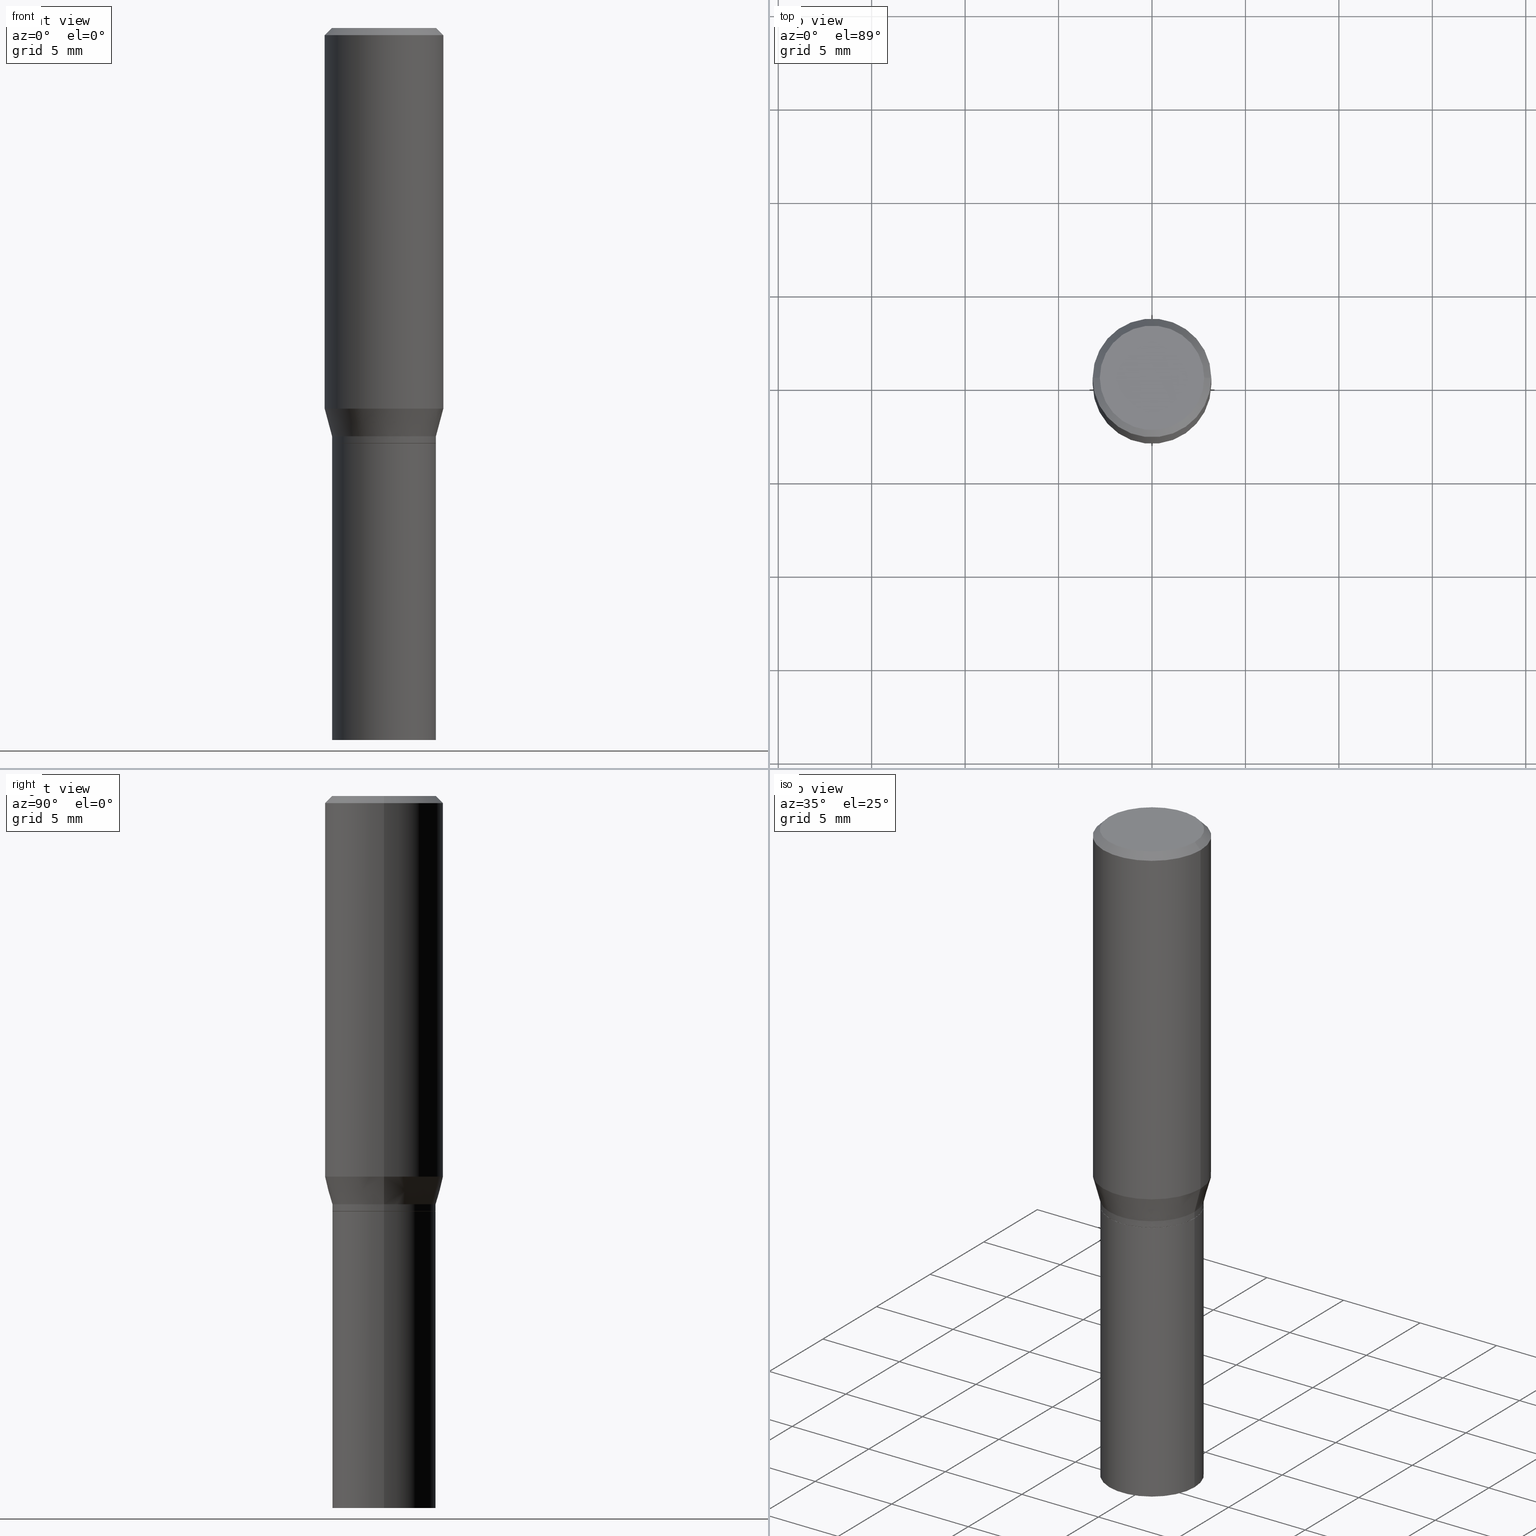
[diagram: canonical four-view strip — front | top / right | iso, engineering-drawing reading convention]
A machine part, canonical four-view strip (front | top / right | iso — engineering-drawing reading convention). The complete STEP part file that produces these views, byte-faithful:
ISO-10303-21;
HEADER;
FILE_DESCRIPTION (( 'STEP AP203' ),
    '1' );
FILE_NAME ('35480.STEP',
    '2024-03-13T16:42:05',
    ( '' ),
    ( '' ),
    'SwSTEP 2.0',
    'SolidWorks 2023',
    '' );
FILE_SCHEMA (( 'CONFIG_CONTROL_DESIGN' ));
ENDSEC;

DATA;
#1 = DIRECTION ( 'NONE',  ( 2.445468806185136597E-29, -3.491481338843145583E-15, -1.000000000000000000 ) ) ;
#2 =( NAMED_UNIT ( * ) PLANE_ANGLE_UNIT ( ) SI_UNIT ( $, .RADIAN. ) );
#3 = CC_DESIGN_DATE_AND_TIME_ASSIGNMENT ( #321, #139, ( #93 ) ) ;
#4 = CONICAL_SURFACE ( 'NONE', #52, 0.1250000000000000000, 0.7853981633974483900 ) ;
#5 = DIRECTION ( 'NONE',  ( 1.000000000000000000, -6.982962677686269866E-15, 0.000000000000000000 ) ) ;
#6 = LOCAL_TIME ( 12, 42, 5.000000000000000000, #286 ) ;
#7 = VERTEX_POINT ( 'NONE', #215 ) ;
#8 = ORIENTED_EDGE ( 'NONE', *, *, #59, .F. ) ;
#9 = DIRECTION ( 'NONE',  ( -2.445468806185136597E-29, 3.491481338843145583E-15, 1.000000000000000000 ) ) ;
#10 = CARTESIAN_POINT ( 'NONE',  ( 0.1094000000000000389, -7.639361169388778676E-16, 5.334537392720755310E-30 ) ) ;
#11 = EDGE_CURVE ( 'NONE', #159, #70, #339, .T. ) ;
#12 = AXIS2_PLACEMENT_3D ( 'NONE', #349, #464, #449 ) ;
#13 = PERSON ( 'UNSPECIFIED', 'UNSPECIFIED', 'UNSPECIFIED', ('UNSPECIFIED'), ('UNSPECIFIED'), ('UNSPECIFIED') ) ;
#14 = CIRCLE ( 'NONE', #89, 0.1093999999999999972 ) ;
#15 = EDGE_CURVE ( 'NONE', #123, #412, #312, .T. ) ;
#16 = EDGE_CURVE ( 'NONE', #287, #412, #378, .T. ) ;
#17 = CC_DESIGN_PERSON_AND_ORGANIZATION_ASSIGNMENT ( #207, #167, ( #295 ) ) ;
#18 = ORIENTED_EDGE ( 'NONE', *, *, #436, .F. ) ;
#19 = VECTOR ( 'NONE', #374, 39.37007874015748143 ) ;
#20 = FACE_OUTER_BOUND ( 'NONE', #367, .T. ) ;
#21 = MANIFOLD_SOLID_BREP ( 'Body-Move/Copy2[1]', #235 ) ;
#22 = APPROVAL_PERSON_ORGANIZATION ( #462, #351, #36 ) ;
#23 = EDGE_CURVE ( 'NONE', #175, #261, #28, .T. ) ;
#24 = DIRECTION ( 'NONE',  ( -2.445468806185136597E-29, 3.491481338843145583E-15, 1.000000000000000000 ) ) ;
#25 = EDGE_LOOP ( 'NONE', ( #204, #160, #343, #280 ) ) ;
#26 = CARTESIAN_POINT ( 'NONE',  ( 1.960727997524297343E-29, -2.799399933701342964E-15, -0.8017800074019257872 ) ) ;
#27 = SHAPE_DEFINITION_REPRESENTATION ( #370, #397 ) ;
#28 = CIRCLE ( 'NONE', #12, 0.1088999999999999968 ) ;
#29 = CARTESIAN_POINT ( 'NONE',  ( 2.138562471008902281E-29, -3.053300430818330832E-15, -0.8745000000000000551 ) ) ;
#30 = CIRCLE ( 'NONE', #451, 0.1094000000000000389 ) ;
#31 = DIRECTION ( 'NONE',  ( 1.000000000000000000, -6.982962677686266711E-15, 4.876001053725558154E-29 ) ) ;
#32 = SECURITY_CLASSIFICATION_LEVEL ( 'unclassified' ) ;
#33 = EDGE_CURVE ( 'NONE', #445, #287, #37, .T. ) ;
#34 = VERTEX_POINT ( 'NONE', #192 ) ;
#35 = DIRECTION ( 'NONE',  ( 1.000000000000000000, -6.982962677686266711E-15, 0.000000000000000000 ) ) ;
#36 = APPROVAL_ROLE ( '' ) ;
#37 = LINE ( 'NONE', #419, #193 ) ;
#38 = CALENDAR_DATE ( 2024, 13, 3 ) ;
#39 = LINE ( 'NONE', #426, #116 ) ;
#40 = DIRECTION ( 'NONE',  ( 1.000000000000000000, -6.982962677686266711E-15, 0.000000000000000000 ) ) ;
#41 = LINE ( 'NONE', #177, #425 ) ;
#42 = AXIS2_PLACEMENT_3D ( 'NONE', #328, #120, #5 ) ;
#43 = CC_DESIGN_APPROVAL ( #173, ( #310 ) ) ;
#44 = ORIENTED_EDGE ( 'NONE', *, *, #46, .T. ) ;
#45 = DIRECTION ( 'NONE',  ( -1.000000000000000000, 6.982962677686265922E-15, -4.876176775795935793E-29 ) ) ;
#46 = EDGE_CURVE ( 'NONE', #34, #198, #225, .T. ) ;
#47 = EDGE_LOOP ( 'NONE', ( #44, #256, #381, #331 ) ) ;
#48 = CARTESIAN_POINT ( 'NONE',  ( 2.138562471008902281E-29, -3.053300430818330832E-15, -0.8745000000000000551 ) ) ;
#49 = VERTEX_POINT ( 'NONE', #179 ) ;
#50 = FACE_OUTER_BOUND ( 'NONE', #273, .T. ) ;
#51 = ADVANCED_FACE ( 'NONE', ( #323 ), #466, .F. ) ;
#52 = AXIS2_PLACEMENT_3D ( 'NONE', #140, #245, #213 ) ;
#53 = CC_DESIGN_APPROVAL ( #351, ( #295 ) ) ;
#54 = CARTESIAN_POINT ( 'NONE',  ( -0.1094000000000000389, -2.068280856242386505E-15, -0.8600000000000000977 ) ) ;
#55 = EDGE_CURVE ( 'NONE', #261, #175, #461, .T. ) ;
#56 = LINE ( 'NONE', #335, #433 ) ;
#57 = LINE ( 'NONE', #448, #81 ) ;
#58 = ORIENTED_EDGE ( 'NONE', *, *, #15, .T. ) ;
#59 = EDGE_CURVE ( 'NONE', #412, #287, #60, .T. ) ;
#60 = CIRCLE ( 'NONE', #275, 0.1250000000000000000 ) ;
#61 = AXIS2_PLACEMENT_3D ( 'NONE', #313, #392, #31 ) ;
#62 = CARTESIAN_POINT ( 'NONE',  ( 0.1088999999999999968, -3.815490807087786506E-15, -0.8750000000000001110 ) ) ;
#63 = EDGE_CURVE ( 'NONE', #70, #159, #88, .T. ) ;
#64 = CARTESIAN_POINT ( 'NONE',  ( 0.1093999999999999972, -3.818982288426630302E-15, -0.8750000000000001110 ) ) ;
#65 = COORDINATED_UNIVERSAL_TIME_OFFSET ( 5, 0, .BEHIND. ) ;
#66 = ORIENTED_EDGE ( 'NONE', *, *, #85, .F. ) ;
#67 = AXIS2_PLACEMENT_3D ( 'NONE', #184, #111, #35 ) ;
#68 = DIRECTION ( 'NONE',  ( -2.445468806185136597E-29, 3.491481338843145583E-15, 1.000000000000000000 ) ) ;
#69 = CALENDAR_DATE ( 2024, 13, 3 ) ;
#70 = VERTEX_POINT ( 'NONE', #296 ) ;
#71 = CC_DESIGN_PERSON_AND_ORGANIZATION_ASSIGNMENT ( #279, #291, ( #310 ) ) ;
#72 = MECHANICAL_CONTEXT ( 'NONE', #264, 'mechanical' ) ;
#73 = EDGE_LOOP ( 'NONE', ( #442, #260 ) ) ;
#74 = AXIS2_PLACEMENT_3D ( 'NONE', #369, #441, #298 ) ;
#75 = CARTESIAN_POINT ( 'NONE',  ( 0.000000000000000000, 0.000000000000000000, 0.000000000000000000 ) ) ;
#76 =( LENGTH_UNIT ( ) NAMED_UNIT ( * ) SI_UNIT ( $, .METRE. ) );
#77 = CARTESIAN_POINT ( 'NONE',  ( 7.681258945454893776E-16, 0.1100000000000000006, -3.879001556016067477E-16 ) ) ;
#78 = DIRECTION ( 'NONE',  ( -2.445468806185136597E-29, 3.491481338843145583E-15, 1.000000000000000000 ) ) ;
#79 = ORIENTED_EDGE ( 'NONE', *, *, #126, .F. ) ;
#80 = AXIS2_PLACEMENT_3D ( 'NONE', #429, #113, #45 ) ;
#81 = VECTOR ( 'NONE', #278, 39.37007874015748143 ) ;
#82 = DIRECTION ( 'NONE',  ( -2.445468806185136597E-29, 3.491481338843145583E-15, 1.000000000000000000 ) ) ;
#83 = ORIENTED_EDGE ( 'NONE', *, *, #422, .T. ) ;
#84 = DIRECTION ( 'NONE',  ( -2.445468806185136597E-29, 3.491481338843145583E-15, 1.000000000000000000 ) ) ;
#85 = EDGE_CURVE ( 'NONE', #49, #122, #268, .T. ) ;
#86 = DIRECTION ( 'NONE',  ( 1.000000000000000000, -6.982962677686269866E-15, 0.000000000000000000 ) ) ;
#87 = EDGE_LOOP ( 'NONE', ( #408, #106, #119, #398 ) ) ;
#88 = CIRCLE ( 'NONE', #400, 0.1094000000000000528 ) ;
#89 = AXIS2_PLACEMENT_3D ( 'NONE', #405, #191, #86 ) ;
#90 = FACE_OUTER_BOUND ( 'NONE', #47, .T. ) ;
#91 = ORIENTED_EDGE ( 'NONE', *, *, #320, .T. ) ;
#92 = DIRECTION ( 'NONE',  ( -2.445468806185136597E-29, 3.491481338843145583E-15, 1.000000000000000000 ) ) ;
#93 = PRODUCT_DEFINITION ( 'UNKNOWN', '', #295, #376 ) ;
#94 = VECTOR ( 'NONE', #342, 39.37007874015748143 ) ;
#95 = DIRECTION ( 'NONE',  ( 1.000000000000000000, -6.982962677686266711E-15, 0.000000000000000000 ) ) ;
#96 = ORIENTED_EDGE ( 'NONE', *, *, #33, .F. ) ;
#97 = ORIENTED_EDGE ( 'NONE', *, *, #185, .F. ) ;
#98 = ADVANCED_FACE ( 'NONE', ( #186 ), #236, .T. ) ;
#99 = CARTESIAN_POINT ( 'NONE',  ( -0.1088999999999999968, -2.278615905070892449E-15, -0.8750000000000001110 ) ) ;
#100 = ADVANCED_FACE ( 'NONE', ( #368 ), #450, .T. ) ;
#101 = DIRECTION ( 'NONE',  ( -0.7071067811865475727, 2.468850131082257455E-15, -0.7071067811865474617 ) ) ;
#102 = PERSON_AND_ORGANIZATION ( #13, #262 ) ;
#103 = EDGE_LOOP ( 'NONE', ( #337, #267 ) ) ;
#104 = COORDINATED_UNIVERSAL_TIME_OFFSET ( 5, 0, .BEHIND. ) ;
#105 = CC_DESIGN_PERSON_AND_ORGANIZATION_ASSIGNMENT ( #170, #151, ( #93 ) ) ;
#106 = ORIENTED_EDGE ( 'NONE', *, *, #383, .T. ) ;
#107 = CIRCLE ( 'NONE', #409, 0.1093999999999999972 ) ;
#108 = FACE_OUTER_BOUND ( 'NONE', #25, .T. ) ;
#109 = ORIENTED_EDGE ( 'NONE', *, *, #422, .F. ) ;
#110 = ORIENTED_EDGE ( 'NONE', *, *, #16, .F. ) ;
#111 = DIRECTION ( 'NONE',  ( -2.445468806185136597E-29, 3.491481338843145583E-15, 1.000000000000000000 ) ) ;
#112 = PERSON_AND_ORGANIZATION ( #13, #262 ) ;
#113 = DIRECTION ( 'NONE',  ( 2.438088387897960049E-29, -3.491481338843145188E-15, -1.000000000000000000 ) ) ;
#114 = PERSON_AND_ORGANIZATION_ROLE ( 'design_owner' ) ;
#115 = DIRECTION ( 'NONE',  ( -2.445468806185136597E-29, 3.491481338843145583E-15, 1.000000000000000000 ) ) ;
#116 = VECTOR ( 'NONE', #455, 39.37007874015748143 ) ;
#117 = PLANE ( 'NONE',  #390 ) ;
#118 = ORIENTED_EDGE ( 'NONE', *, *, #324, .F. ) ;
#119 = ORIENTED_EDGE ( 'NONE', *, *, #46, .F. ) ;
#120 = DIRECTION ( 'NONE',  ( -2.445468806185136597E-29, 3.491481338843145583E-15, 1.000000000000000000 ) ) ;
#121 = DIRECTION ( 'NONE',  ( -2.445468806185136877E-29, 3.491481338843145188E-15, 1.000000000000000000 ) ) ;
#122 = VERTEX_POINT ( 'NONE', #271 ) ;
#123 = VERTEX_POINT ( 'NONE', #382 ) ;
#124 = LOCAL_TIME ( 12, 42, 5.000000000000000000, #384 ) ;
#125 = ADVANCED_FACE ( 'NONE', ( #206 ), #341, .T. ) ;
#126 = EDGE_CURVE ( 'NONE', #198, #34, #30, .T. ) ;
#127 = CARTESIAN_POINT ( 'NONE',  ( 0.000000000000000000, 0.000000000000000000, 0.000000000000000000 ) ) ;
#128 = LINE ( 'NONE', #266, #19 ) ;
#129 = DIRECTION ( 'NONE',  ( -2.445468806185136597E-29, 3.491481338843145583E-15, 1.000000000000000000 ) ) ;
#130 = EDGE_LOOP ( 'NONE', ( #292, #66 ) ) ;
#131 = AXIS2_PLACEMENT_3D ( 'NONE', #307, #132, #377 ) ;
#132 = DIRECTION ( 'NONE',  ( -2.445468806185136597E-29, 3.491481338843145583E-15, 1.000000000000000000 ) ) ;
#133 = CARTESIAN_POINT ( 'NONE',  ( 0.000000000000000000, 0.000000000000000000, 0.000000000000000000 ) ) ;
#134 = DIRECTION ( 'NONE',  ( 1.000000000000000000, -6.982962677686269866E-15, 0.000000000000000000 ) ) ;
#135 = VERTEX_POINT ( 'NONE', #444 ) ;
#136 = VECTOR ( 'NONE', #358, 39.37007874015748143 ) ;
#137 = LOCAL_TIME ( 12, 42, 5.000000000000000000, #244 ) ;
#138 = VERTEX_POINT ( 'NONE', #64 ) ;
#139 = DATE_TIME_ROLE ( 'creation_date' ) ;
#140 = CARTESIAN_POINT ( 'NONE',  ( 3.668203209277705088E-31, -5.237222008264718399E-17, -0.01499999999999999944 ) ) ;
#141 = CARTESIAN_POINT ( 'NONE',  ( 0.000000000000000000, 0.000000000000000000, 0.000000000000000000 ) ) ;
#142 = CARTESIAN_POINT ( 'NONE',  ( 0.000000000000000000, 0.000000000000000000, 0.000000000000000000 ) ) ;
#143 = ORIENTED_EDGE ( 'NONE', *, *, #126, .T. ) ;
#144 = DIRECTION ( 'NONE',  ( -2.445468806185136877E-29, 3.491481338843145188E-15, 1.000000000000000000 ) ) ;
#145 = CALENDAR_DATE ( 2024, 13, 3 ) ;
#146 = FACE_OUTER_BOUND ( 'NONE', #73, .T. ) ;
#147 = ORIENTED_EDGE ( 'NONE', *, *, #465, .T. ) ;
#148 = AXIS2_PLACEMENT_3D ( 'NONE', #26, #414, #389 ) ;
#149 = FACE_OUTER_BOUND ( 'NONE', #242, .T. ) ;
#150 = DATE_TIME_ROLE ( 'classification_date' ) ;
#151 = PERSON_AND_ORGANIZATION_ROLE ( 'creator' ) ;
#152 = EDGE_LOOP ( 'NONE', ( #336, #288, #156, #432 ) ) ;
#153 = VECTOR ( 'NONE', #233, 39.37007874015748143 ) ;
#154 = DIRECTION ( 'NONE',  ( 1.000000000000000000, -6.982962677686266711E-15, 0.000000000000000000 ) ) ;
#155 = DIRECTION ( 'NONE',  ( -2.445468806185136597E-29, 3.491481338843145583E-15, 1.000000000000000000 ) ) ;
#156 = ORIENTED_EDGE ( 'NONE', *, *, #16, .T. ) ;
#157 = CARTESIAN_POINT ( 'NONE',  ( 2.103103173319217765E-29, -3.002673951405105651E-15, -0.8600000000000000977 ) ) ;
#158 = EDGE_LOOP ( 'NONE', ( #302, #402, #147, #8 ) ) ;
#159 = VERTEX_POINT ( 'NONE', #202 ) ;
#160 = ORIENTED_EDGE ( 'NONE', *, *, #85, .T. ) ;
#161 = DIRECTION ( 'NONE',  ( -2.445468806185136597E-29, 3.491481338843145583E-15, 1.000000000000000000 ) ) ;
#162 = EDGE_CURVE ( 'NONE', #445, #7, #201, .T. ) ;
#163 = CIRCLE ( 'NONE', #360, 0.1093999999999999972 ) ;
#164 = APPROVAL ( #345, 'UNSPECIFIED' ) ;
#165 = LINE ( 'NONE', #380, #94 ) ;
#166 = FACE_OUTER_BOUND ( 'NONE', #224, .T. ) ;
#167 = PERSON_AND_ORGANIZATION_ROLE ( 'design_supplier' ) ;
#168 = ORIENTED_EDGE ( 'NONE', *, *, #59, .T. ) ;
#169 = LINE ( 'NONE', #353, #176 ) ;
#170 = PERSON_AND_ORGANIZATION ( #13, #262 ) ;
#171 = DIRECTION ( 'NONE',  ( -2.445468806185136597E-29, 3.491481338843145583E-15, 1.000000000000000000 ) ) ;
#172 = ADVANCED_FACE ( 'NONE', ( #20 ), #194, .T. ) ;
#173 = APPROVAL ( #428, 'UNSPECIFIED' ) ;
#174 = CALENDAR_DATE ( 2024, 13, 3 ) ;
#175 = VERTEX_POINT ( 'NONE', #62 ) ;
#176 = VECTOR ( 'NONE', #101, 39.37007874015748143 ) ;
#177 = CARTESIAN_POINT ( 'NONE',  ( -0.1088999999999999968, -2.281265132245003256E-15, -0.8750000000000001110 ) ) ;
#178 = MANIFOLD_SOLID_BREP ( 'Body-Move/Copy2[2]', #415 ) ;
#179 = CARTESIAN_POINT ( 'NONE',  ( -0.1093999999999999972, -3.368800336954685870E-15, -1.500000000000000222 ) ) ;
#180 = ADVANCED_FACE ( 'NONE', ( #446 ), #407, .T. ) ;
#181 = CARTESIAN_POINT ( 'NONE',  ( 2.139785205411994522E-29, -3.055046171487752730E-15, -0.8750000000000001110 ) ) ;
#182 = FACE_OUTER_BOUND ( 'NONE', #361, .T. ) ;
#183 = DIRECTION ( 'NONE',  ( -2.445468806185136877E-29, 3.491481338843145188E-15, 1.000000000000000000 ) ) ;
#184 = CARTESIAN_POINT ( 'NONE',  ( 1.960727997524297343E-29, -2.799399933701342964E-15, -0.8017800074019257872 ) ) ;
#185 = EDGE_CURVE ( 'NONE', #138, #135, #14, .T. ) ;
#186 = FACE_OUTER_BOUND ( 'NONE', #394, .T. ) ;
#187 = FACE_OUTER_BOUND ( 'NONE', #130, .T. ) ;
#188 = CARTESIAN_POINT ( 'NONE',  ( 3.668203209277705088E-31, -5.237222008264718399E-17, -0.01499999999999999944 ) ) ;
#189 = EDGE_LOOP ( 'NONE', ( #352, #253, #97, #410 ) ) ;
#190 = LINE ( 'NONE', #10, #153 ) ;
#191 = DIRECTION ( 'NONE',  ( -2.445468806185136597E-29, 3.491481338843145583E-15, 1.000000000000000000 ) ) ;
#192 = CARTESIAN_POINT ( 'NONE',  ( 0.1094000000000000389, -3.766610068343983617E-15, -0.8600000000000000977 ) ) ;
#193 = VECTOR ( 'NONE', #371, 39.37007874015748143 ) ;
#194 = CONICAL_SURFACE ( 'NONE', #131, 0.1088999999999999968, 0.7853981633974653764 ) ;
#195 = AXIS2_PLACEMENT_3D ( 'NONE', #257, #82, #229 ) ;
#196 = AXIS2_PLACEMENT_3D ( 'NONE', #142, #424, #356 ) ;
#197 = CARTESIAN_POINT ( 'NONE',  ( 2.139785205411994522E-29, -3.055046171487752730E-15, -0.8750000000000001110 ) ) ;
#198 = VERTEX_POINT ( 'NONE', #54 ) ;
#199 = ADVANCED_FACE ( 'NONE', ( #50 ), #306, .T. ) ;
#200 = ORIENTED_EDGE ( 'NONE', *, *, #55, .F. ) ;
#201 = CIRCLE ( 'NONE', #366, 0.1100000000000000006 ) ;
#202 = CARTESIAN_POINT ( 'NONE',  ( -0.1094000000000000528, -2.275966677896780854E-15, -0.8745000000000000551 ) ) ;
#203 = ADVANCED_FACE ( 'NONE', ( #90 ), #246, .T. ) ;
#204 = ORIENTED_EDGE ( 'NONE', *, *, #205, .F. ) ;
#205 = EDGE_CURVE ( 'NONE', #49, #135, #128, .T. ) ;
#206 = FACE_OUTER_BOUND ( 'NONE', #440, .T. ) ;
#207 = PERSON_AND_ORGANIZATION ( #13, #262 ) ;
#208 = EDGE_CURVE ( 'NONE', #122, #138, #56, .T. ) ;
#209 = DIRECTION ( 'NONE',  ( -2.445468806185136597E-29, 3.491481338843145583E-15, 1.000000000000000000 ) ) ;
#210 = CIRCLE ( 'NONE', #67, 0.1250000000000000000 ) ;
#211 = CARTESIAN_POINT ( 'NONE',  ( -0.1094000000000000389, 7.773337529215498796E-16, -5.381314988738868818E-30 ) ) ;
#212 = APPLICATION_PROTOCOL_DEFINITION ( 'international standard', 'config_control_design', 1994, #439 ) ;
#213 = DIRECTION ( 'NONE',  ( -1.000000000000000000, 6.982962677686266711E-15, 0.000000000000000000 ) ) ;
#214 = DATE_AND_TIME ( #69, #137 ) ;
#215 = CARTESIAN_POINT ( 'NONE',  ( -0.1100000000000000006, 7.943120045868128186E-16, -7.674416657726847932E-18 ) ) ;
#216 = DATE_AND_TIME ( #282, #452 ) ;
#217 = CYLINDRICAL_SURFACE ( 'NONE', #347, 0.1094000000000000389 ) ;
#218 = DIRECTION ( 'NONE',  ( 1.000000000000000000, -6.982962677686265922E-15, 0.000000000000000000 ) ) ;
#219 = DIRECTION ( 'NONE',  ( -2.445468806185136597E-29, 3.491481338843145583E-15, 1.000000000000000000 ) ) ;
#220 = AXIS2_PLACEMENT_3D ( 'NONE', #29, #388, #218 ) ;
#221 = LINE ( 'NONE', #364, #404 ) ;
#222 = LOCAL_TIME ( 12, 42, 5.000000000000000000, #65 ) ;
#223 = CARTESIAN_POINT ( 'NONE',  ( 2.139785205411994522E-29, -3.055046171487752730E-15, -0.8750000000000001110 ) ) ;
#224 = EDGE_LOOP ( 'NONE', ( #91, #58, #110, #255 ) ) ;
#225 = CIRCLE ( 'NONE', #305, 0.1094000000000000389 ) ;
#226 = AXIS2_PLACEMENT_3D ( 'NONE', #141, #254, #284 ) ;
#227 = ORIENTED_EDGE ( 'NONE', *, *, #11, .T. ) ;
#228 =( GEOMETRIC_REPRESENTATION_CONTEXT ( 3 ) GLOBAL_UNCERTAINTY_ASSIGNED_CONTEXT ( ( #265 ) ) GLOBAL_UNIT_ASSIGNED_CONTEXT ( ( #325, #2, #434 ) ) REPRESENTATION_CONTEXT ( 'NONE', 'WORKASPACE' ) );
#229 = DIRECTION ( 'NONE',  ( 1.000000000000000000, -6.982962677686266711E-15, 0.000000000000000000 ) ) ;
#230 = EDGE_CURVE ( 'NONE', #34, #315, #39, .T. ) ;
#231 = DIRECTION ( 'NONE',  ( -2.445468806185136597E-29, 3.491481338843145583E-15, 1.000000000000000000 ) ) ;
#232 = ADVANCED_FACE ( 'NONE', ( #248 ), #217, .T. ) ;
#233 = DIRECTION ( 'NONE',  ( -2.445468806185136877E-29, 3.491481338843145188E-15, 1.000000000000000000 ) ) ;
#234 = DIRECTION ( 'NONE',  ( 1.000000000000000000, -6.982962677686266711E-15, 4.876176775795935793E-29 ) ) ;
#235 = CLOSED_SHELL ( 'NONE', ( #355, #431, #418, #51 ) ) ;
#236 = CONICAL_SURFACE ( 'NONE', #195, 0.1094000000000000389, 0.2617993877991495744 ) ;
#237 = ORIENTED_EDGE ( 'NONE', *, *, #23, .T. ) ;
#238 = CC_DESIGN_PERSON_AND_ORGANIZATION_ASSIGNMENT ( #102, #249, ( #295 ) ) ;
#239 = ORIENTED_EDGE ( 'NONE', *, *, #270, .F. ) ;
#240 = ADVANCED_FACE ( 'NONE', ( #146 ), #251, .F. ) ;
#241 = APPROVAL_PERSON_ORGANIZATION ( #393, #173, #454 ) ;
#242 = EDGE_LOOP ( 'NONE', ( #96, #118, #329, #168 ) ) ;
#243 = CARTESIAN_POINT ( 'NONE',  ( 0.1100000000000000006, -8.322946247794786836E-16, -7.674416657715788472E-18 ) ) ;
#244 = COORDINATED_UNIVERSAL_TIME_OFFSET ( 5, 0, .BEHIND. ) ;
#245 = DIRECTION ( 'NONE',  ( 2.445468806185136597E-29, -3.491481338843145583E-15, -1.000000000000000000 ) ) ;
#246 = CONICAL_SURFACE ( 'NONE', #74, 0.1094000000000000389, 0.2617993877991495744 ) ;
#247 = APPROVAL_DATE_TIME ( #216, #164 ) ;
#248 = FACE_OUTER_BOUND ( 'NONE', #87, .T. ) ;
#249 = PERSON_AND_ORGANIZATION_ROLE ( 'creator' ) ;
#250 = APPROVAL_STATUS ( 'not_yet_approved' ) ;
#251 = PLANE ( 'NONE',  #372 ) ;
#252 = ADVANCED_FACE ( 'NONE', ( #182 ), #117, .F. ) ;
#253 = ORIENTED_EDGE ( 'NONE', *, *, #205, .T. ) ;
#254 = DIRECTION ( 'NONE',  ( -2.445468806185136597E-29, 3.491481338843145583E-15, 1.000000000000000000 ) ) ;
#255 = ORIENTED_EDGE ( 'NONE', *, *, #465, .F. ) ;
#256 = ORIENTED_EDGE ( 'NONE', *, *, #436, .T. ) ;
#257 = CARTESIAN_POINT ( 'NONE',  ( 2.103103173319217765E-29, -3.002673951405105651E-15, -0.8600000000000000977 ) ) ;
#258 = EDGE_CURVE ( 'NONE', #70, #34, #190, .T. ) ;
#259 = AXIS2_PLACEMENT_3D ( 'NONE', #181, #9, #403 ) ;
#260 = ORIENTED_EDGE ( 'NONE', *, *, #162, .T. ) ;
#261 = VERTEX_POINT ( 'NONE', #99 ) ;
#262 = ORGANIZATION ( 'UNSPECIFIED', 'UNSPECIFIED', '' ) ;
#263 = DIMENSIONAL_EXPONENTS ( 1.000000000000000000, 0.000000000000000000, 0.000000000000000000, 0.000000000000000000, 0.000000000000000000, 0.000000000000000000, 0.000000000000000000 ) ;
#264 = APPLICATION_CONTEXT ( 'configuration controlled 3d designs of mechanical parts and assemblies' ) ;
#265 = UNCERTAINTY_MEASURE_WITH_UNIT (LENGTH_MEASURE( 1.000000000000000082E-05 ), #325, 'distance_accuracy_value', 'NONE');
#266 = CARTESIAN_POINT ( 'NONE',  ( -0.1093999999999999972, 7.773337529215495838E-16, -5.381314988738867416E-30 ) ) ;
#267 = ORIENTED_EDGE ( 'NONE', *, *, #290, .T. ) ;
#268 = CIRCLE ( 'NONE', #42, 0.1093999999999999972 ) ;
#269 = DIRECTION ( 'NONE',  ( 1.000000000000000000, -6.982962677686269866E-15, 0.000000000000000000 ) ) ;
#270 = EDGE_CURVE ( 'NONE', #175, #70, #165, .T. ) ;
#271 = CARTESIAN_POINT ( 'NONE',  ( 0.1093999999999999972, -6.001158125203596537E-15, -1.500000000000000222 ) ) ;
#272 = DIRECTION ( 'NONE',  ( 1.000000000000000000, -6.982962677686265922E-15, 4.876176775795935793E-29 ) ) ;
#273 = EDGE_LOOP ( 'NONE', ( #237, #83, #411, #239 ) ) ;
#274 = DIRECTION ( 'NONE',  ( 1.000000000000000000, -6.982962677686266711E-15, 4.876176775795935232E-29 ) ) ;
#275 = AXIS2_PLACEMENT_3D ( 'NONE', #188, #84, #154 ) ;
#276 = CIRCLE ( 'NONE', #61, 0.1100000000000000006 ) ;
#277 = CC_DESIGN_APPROVAL ( #164, ( #93 ) ) ;
#278 = DIRECTION ( 'NONE',  ( -0.2588190451025209060, 5.211531920934547097E-15, 0.9659258262890682012 ) ) ;
#279 = PERSON_AND_ORGANIZATION ( #13, #262 ) ;
#280 = ORIENTED_EDGE ( 'NONE', *, *, #290, .F. ) ;
#281 = FACE_OUTER_BOUND ( 'NONE', #189, .T. ) ;
#282 = CALENDAR_DATE ( 2024, 13, 3 ) ;
#283 = ORIENTED_EDGE ( 'NONE', *, *, #383, .F. ) ;
#284 = DIRECTION ( 'NONE',  ( 1.000000000000000000, -6.982962677686266711E-15, 4.876176775795935793E-29 ) ) ;
#285 = AXIS2_PLACEMENT_3D ( 'NONE', #365, #437, #272 ) ;
#286 = COORDINATED_UNIVERSAL_TIME_OFFSET ( 5, 0, .BEHIND. ) ;
#287 = VERTEX_POINT ( 'NONE', #385 ) ;
#288 = ORIENTED_EDGE ( 'NONE', *, *, #33, .T. ) ;
#289 = CYLINDRICAL_SURFACE ( 'NONE', #443, 0.1093999999999999972 ) ;
#290 = EDGE_CURVE ( 'NONE', #135, #138, #163, .T. ) ;
#291 = PERSON_AND_ORGANIZATION_ROLE ( 'classification_officer' ) ;
#292 = ORIENTED_EDGE ( 'NONE', *, *, #293, .F. ) ;
#293 = EDGE_CURVE ( 'NONE', #122, #49, #107, .T. ) ;
#294 = LENGTH_MEASURE_WITH_UNIT ( LENGTH_MEASURE( 0.02539999999999999897 ), #76 );
#295 = PRODUCT_DEFINITION_FORMATION_WITH_SPECIFIED_SOURCE ( 'ANY', '', #438, .NOT_KNOWN. ) ;
#296 = CARTESIAN_POINT ( 'NONE',  ( 0.1094000000000000528, -3.817236547757208798E-15, -0.8745000000000000551 ) ) ;
#297 = ORIENTED_EDGE ( 'NONE', *, *, #270, .T. ) ;
#298 = DIRECTION ( 'NONE',  ( 1.000000000000000000, -6.982962677686266711E-15, 0.000000000000000000 ) ) ;
#299 = PLANE ( 'NONE',  #285 ) ;
#300 = DIRECTION ( 'NONE',  ( 1.000000000000000000, -6.982962677686265922E-15, 0.000000000000000000 ) ) ;
#301 = AXIS2_PLACEMENT_3D ( 'NONE', #133, #92, #274 ) ;
#302 = ORIENTED_EDGE ( 'NONE', *, *, #15, .F. ) ;
#303 = CC_DESIGN_SECURITY_CLASSIFICATION ( #310, ( #295 ) ) ;
#304 = DIRECTION ( 'NONE',  ( -2.445468806185136597E-29, 3.491481338843145583E-15, 1.000000000000000000 ) ) ;
#305 = AXIS2_PLACEMENT_3D ( 'NONE', #157, #304, #391 ) ;
#306 = CONICAL_SURFACE ( 'NONE', #379, 0.1088999999999999968, 0.7853981633974653764 ) ;
#307 = CARTESIAN_POINT ( 'NONE',  ( 2.139785205411994522E-29, -3.055046171487752730E-15, -0.8750000000000001110 ) ) ;
#308 = CARTESIAN_POINT ( 'NONE',  ( 1.876754654212523840E-46, -2.679508254694119990E-32, -7.674416657721384454E-18 ) ) ;
#309 = AXIS2_PLACEMENT_3D ( 'NONE', #330, #1, #413 ) ;
#310 = SECURITY_CLASSIFICATION ( '', '', #32 ) ;
#311 = APPLICATION_PROTOCOL_DEFINITION ( 'international standard', 'config_control_design', 1994, #264 ) ;
#312 = LINE ( 'NONE', #421, #136 ) ;
#313 = CARTESIAN_POINT ( 'NONE',  ( 1.876754654212523840E-46, -2.679508254694119990E-32, -7.674416657721384454E-18 ) ) ;
#314 = DATE_AND_TIME ( #174, #6 ) ;
#315 = VERTEX_POINT ( 'NONE', #395 ) ;
#316 = ADVANCED_FACE ( 'NONE', ( #149 ), #4, .T. ) ;
#317 = DIRECTION ( 'NONE',  ( 1.000000000000000000, -6.982962677686266711E-15, 4.876176775795935793E-29 ) ) ;
#318 = APPROVAL_DATE_TIME ( #348, #351 ) ;
#319 = CARTESIAN_POINT ( 'NONE',  ( -0.1250000000000000000, -5.377076571918697891E-16, -0.01499999999999999944 ) ) ;
#320 = EDGE_CURVE ( 'NONE', #315, #123, #210, .T. ) ;
#321 = DATE_AND_TIME ( #38, #124 ) ;
#322 = DIRECTION ( 'NONE',  ( -0.7071067811865595631, 7.493145998870398336E-15, 0.7071067811865354713 ) ) ;
#323 = FACE_OUTER_BOUND ( 'NONE', #103, .T. ) ;
#324 = EDGE_CURVE ( 'NONE', #7, #445, #276, .T. ) ;
#325 =( CONVERSION_BASED_UNIT ( 'INCH', #294 ) LENGTH_UNIT ( ) NAMED_UNIT ( #263 ) );
#326 = AXIS2_PLACEMENT_3D ( 'NONE', #127, #155, #234 ) ;
#327 = EDGE_CURVE ( 'NONE', #7, #412, #169, .T. ) ;
#328 = CARTESIAN_POINT ( 'NONE',  ( 3.668203209277704895E-29, -5.237222008264718177E-15, -1.500000000000000222 ) ) ;
#329 = ORIENTED_EDGE ( 'NONE', *, *, #327, .T. ) ;
#330 = CARTESIAN_POINT ( 'NONE',  ( 3.668203209277705088E-31, -5.237222008264718399E-17, -0.01499999999999999944 ) ) ;
#331 = ORIENTED_EDGE ( 'NONE', *, *, #230, .F. ) ;
#332 = VECTOR ( 'NONE', #144, 39.37007874015748143 ) ;
#333 = CC_DESIGN_PERSON_AND_ORGANIZATION_ASSIGNMENT ( #112, #114, ( #438 ) ) ;
#334 = DIRECTION ( 'NONE',  ( 1.000000000000000000, -6.982962677686264344E-15, 0.000000000000000000 ) ) ;
#335 = CARTESIAN_POINT ( 'NONE',  ( 0.1093999999999999972, -7.639361169388775718E-16, 5.334537392720753909E-30 ) ) ;
#336 = ORIENTED_EDGE ( 'NONE', *, *, #162, .F. ) ;
#337 = ORIENTED_EDGE ( 'NONE', *, *, #185, .T. ) ;
#338 = DIRECTION ( 'NONE',  ( 1.000000000000000000, -6.982962677686266711E-15, 4.876001053725558154E-29 ) ) ;
#339 = CIRCLE ( 'NONE', #220, 0.1094000000000000528 ) ;
#340 = CIRCLE ( 'NONE', #148, 0.1250000000000000000 ) ;
#341 = CYLINDRICAL_SURFACE ( 'NONE', #301, 0.1094000000000000389 ) ;
#342 = DIRECTION ( 'NONE',  ( 0.7071067811865595631, -2.468850131082382884E-15, 0.7071067811865354713 ) ) ;
#343 = ORIENTED_EDGE ( 'NONE', *, *, #208, .T. ) ;
#344 = CARTESIAN_POINT ( 'NONE',  ( 2.103103173319217765E-29, -3.002673951405105651E-15, -0.8600000000000000977 ) ) ;
#345 = APPROVAL_STATUS ( 'not_yet_approved' ) ;
#346 = CARTESIAN_POINT ( 'NONE',  ( 3.668203209277704895E-29, -5.237222008264718177E-15, -1.500000000000000222 ) ) ;
#347 = AXIS2_PLACEMENT_3D ( 'NONE', #75, #115, #362 ) ;
#348 = DATE_AND_TIME ( #145, #222 ) ;
#349 = CARTESIAN_POINT ( 'NONE',  ( 2.139785205411994522E-29, -3.055046171487752730E-15, -0.8750000000000001110 ) ) ;
#350 = CC_DESIGN_DATE_AND_TIME_ASSIGNMENT ( #314, #150, ( #310 ) ) ;
#351 = APPROVAL ( #250, 'UNSPECIFIED' ) ;
#352 = ORIENTED_EDGE ( 'NONE', *, *, #293, .T. ) ;
#353 = CARTESIAN_POINT ( 'NONE',  ( -0.1250000000000000000, 8.204981146281362596E-16, -0.01499999999999999944 ) ) ;
#354 = CARTESIAN_POINT ( 'NONE',  ( 3.668203209277705088E-31, -5.237222008264718399E-17, -0.01499999999999999944 ) ) ;
#355 = ADVANCED_FACE ( 'NONE', ( #281 ), #386, .T. ) ;
#356 = DIRECTION ( 'NONE',  ( 1.000000000000000000, 0.000000000000000000, 0.000000000000000000 ) ) ;
#357 = DIRECTION ( 'NONE',  ( 2.438088387897960049E-29, -3.491481338843145188E-15, -1.000000000000000000 ) ) ;
#358 = DIRECTION ( 'NONE',  ( -2.445468806185136877E-29, 3.491481338843145188E-15, 1.000000000000000000 ) ) ;
#359 = DIRECTION ( 'NONE',  ( 1.000000000000000000, -6.982962677686266711E-15, 4.876176775795935793E-29 ) ) ;
#360 = AXIS2_PLACEMENT_3D ( 'NONE', #447, #209, #134 ) ;
#361 = EDGE_LOOP ( 'NONE', ( #375, #200 ) ) ;
#362 = DIRECTION ( 'NONE',  ( 1.000000000000000000, -6.982962677686266711E-15, 4.876176775795935232E-29 ) ) ;
#363 = DIRECTION ( 'NONE',  ( -2.438088387897960049E-29, 3.491481338843145188E-15, 1.000000000000000000 ) ) ;
#364 = CARTESIAN_POINT ( 'NONE',  ( 0.1250000000000000000, -8.728703347107833388E-16, 6.095220969744919741E-30 ) ) ;
#365 = CARTESIAN_POINT ( 'NONE',  ( 3.576687321579069994E-29, -5.368277968210015545E-15, -1.500000000000000222 ) ) ;
#366 = AXIS2_PLACEMENT_3D ( 'NONE', #308, #161, #338 ) ;
#367 = EDGE_LOOP ( 'NONE', ( #109, #396, #297, #456 ) ) ;
#368 = FACE_OUTER_BOUND ( 'NONE', #152, .T. ) ;
#369 = CARTESIAN_POINT ( 'NONE',  ( 2.103103173319217765E-29, -3.002673951405105651E-15, -0.8600000000000000977 ) ) ;
#370 = PRODUCT_DEFINITION_SHAPE ( 'NONE', 'NONE',  #93 ) ;
#371 = DIRECTION ( 'NONE',  ( 0.7071067811865475727, -7.319954787623256045E-15, -0.7071067811865474617 ) ) ;
#372 = AXIS2_PLACEMENT_3D ( 'NONE', #77, #357, #463 ) ;
#373 = ORIENTED_EDGE ( 'NONE', *, *, #457, .F. ) ;
#374 = DIRECTION ( 'NONE',  ( -2.445468806185136877E-29, 3.491481338843145188E-15, 1.000000000000000000 ) ) ;
#375 = ORIENTED_EDGE ( 'NONE', *, *, #23, .F. ) ;
#376 = DESIGN_CONTEXT ( 'detailed design', #439, 'design' ) ;
#377 = DIRECTION ( 'NONE',  ( 1.000000000000000000, -6.982962677686264344E-15, 0.000000000000000000 ) ) ;
#378 = CIRCLE ( 'NONE', #399, 0.1250000000000000000 ) ;
#379 = AXIS2_PLACEMENT_3D ( 'NONE', #197, #231, #334 ) ;
#380 = CARTESIAN_POINT ( 'NONE',  ( 0.1088999999999999968, -3.815490807087786506E-15, -0.8750000000000001110 ) ) ;
#381 = ORIENTED_EDGE ( 'NONE', *, *, #320, .F. ) ;
#382 = CARTESIAN_POINT ( 'NONE',  ( -0.1250000000000000000, -1.911221514001217731E-15, -0.8017800074019257872 ) ) ;
#383 = EDGE_CURVE ( 'NONE', #159, #198, #459, .T. ) ;
#384 = COORDINATED_UNIVERSAL_TIME_OFFSET ( 5, 0, .BEHIND. ) ;
#385 = CARTESIAN_POINT ( 'NONE',  ( 0.1250000000000000000, -9.252425547934304180E-16, -0.01499999999999999944 ) ) ;
#386 = CYLINDRICAL_SURFACE ( 'NONE', #416, 0.1093999999999999972 ) ;
#387 = APPROVAL_DATE_TIME ( #214, #173 ) ;
#388 = DIRECTION ( 'NONE',  ( -2.445468806185136597E-29, 3.491481338843145583E-15, 1.000000000000000000 ) ) ;
#389 = DIRECTION ( 'NONE',  ( 1.000000000000000000, -6.982962677686266711E-15, 0.000000000000000000 ) ) ;
#390 = AXIS2_PLACEMENT_3D ( 'NONE', #223, #363, #406 ) ;
#391 = DIRECTION ( 'NONE',  ( 1.000000000000000000, -6.982962677686266711E-15, 0.000000000000000000 ) ) ;
#392 = DIRECTION ( 'NONE',  ( -2.445468806185136597E-29, 3.491481338843145583E-15, 1.000000000000000000 ) ) ;
#393 = PERSON_AND_ORGANIZATION ( #13, #262 ) ;
#394 = EDGE_LOOP ( 'NONE', ( #18, #143, #435, #373 ) ) ;
#395 = CARTESIAN_POINT ( 'NONE',  ( 0.1250000000000000000, -3.672270268412127091E-15, -0.8017800074019257872 ) ) ;
#396 = ORIENTED_EDGE ( 'NONE', *, *, #55, .T. ) ;
#397 = ADVANCED_BREP_SHAPE_REPRESENTATION ( '35480', ( #21, #178, #196 ), #228 ) ;
#398 = ORIENTED_EDGE ( 'NONE', *, *, #258, .F. ) ;
#399 = AXIS2_PLACEMENT_3D ( 'NONE', #354, #171, #40 ) ;
#400 = AXIS2_PLACEMENT_3D ( 'NONE', #48, #78, #300 ) ;
#401 = ADVANCED_FACE ( 'NONE', ( #166 ), #423, .T. ) ;
#402 = ORIENTED_EDGE ( 'NONE', *, *, #457, .T. ) ;
#403 = DIRECTION ( 'NONE',  ( 1.000000000000000000, -6.982962677686264344E-15, 0.000000000000000000 ) ) ;
#404 = VECTOR ( 'NONE', #183, 39.37007874015748143 ) ;
#405 = CARTESIAN_POINT ( 'NONE',  ( 2.139785205411994522E-29, -3.055046171487752730E-15, -0.8750000000000001110 ) ) ;
#406 = DIRECTION ( 'NONE',  ( 1.000000000000000000, -6.982962677686265922E-15, 4.876176775795935793E-29 ) ) ;
#407 = CYLINDRICAL_SURFACE ( 'NONE', #326, 0.1250000000000000000 ) ;
#408 = ORIENTED_EDGE ( 'NONE', *, *, #63, .T. ) ;
#409 = AXIS2_PLACEMENT_3D ( 'NONE', #346, #129, #269 ) ;
#410 = ORIENTED_EDGE ( 'NONE', *, *, #208, .F. ) ;
#411 = ORIENTED_EDGE ( 'NONE', *, *, #63, .F. ) ;
#412 = VERTEX_POINT ( 'NONE', #319 ) ;
#413 = DIRECTION ( 'NONE',  ( -1.000000000000000000, 6.982962677686266711E-15, 0.000000000000000000 ) ) ;
#414 = DIRECTION ( 'NONE',  ( -2.445468806185136597E-29, 3.491481338843145583E-15, 1.000000000000000000 ) ) ;
#415 = CLOSED_SHELL ( 'NONE', ( #232, #199, #100, #401, #203, #98, #180, #316, #240, #252, #172, #125 ) ) ;
#416 = AXIS2_PLACEMENT_3D ( 'NONE', #453, #68, #317 ) ;
#417 = APPROVAL_PERSON_ORGANIZATION ( #420, #164, #430 ) ;
#418 = ADVANCED_FACE ( 'NONE', ( #108 ), #289, .T. ) ;
#419 = CARTESIAN_POINT ( 'NONE',  ( 0.1250000000000000000, -9.099344698040885245E-16, -0.01499999999999999944 ) ) ;
#420 = PERSON_AND_ORGANIZATION ( #13, #262 ) ;
#421 = CARTESIAN_POINT ( 'NONE',  ( -0.1250000000000000000, 8.881784197001252323E-16, -6.148668862818632227E-30 ) ) ;
#422 = EDGE_CURVE ( 'NONE', #261, #159, #41, .T. ) ;
#423 = CYLINDRICAL_SURFACE ( 'NONE', #226, 0.1250000000000000000 ) ;
#424 = DIRECTION ( 'NONE',  ( 0.000000000000000000, 0.000000000000000000, 1.000000000000000000 ) ) ;
#425 = VECTOR ( 'NONE', #322, 39.37007874015748143 ) ;
#426 = CARTESIAN_POINT ( 'NONE',  ( 0.1094000000000000389, -3.766610068343983617E-15, -0.8600000000000000977 ) ) ;
#427 = CARTESIAN_POINT ( 'NONE',  ( 0.000000000000000000, 0.000000000000000000, 0.000000000000000000 ) ) ;
#428 = APPROVAL_STATUS ( 'not_yet_approved' ) ;
#429 = CARTESIAN_POINT ( 'NONE',  ( 7.639361169388987725E-16, 0.1093999999999969441, -0.8750000000000005551 ) ) ;
#430 = APPROVAL_ROLE ( '' ) ;
#431 = ADVANCED_FACE ( 'NONE', ( #187 ), #299, .F. ) ;
#432 = ORIENTED_EDGE ( 'NONE', *, *, #327, .F. ) ;
#433 = VECTOR ( 'NONE', #121, 39.37007874015748143 ) ;
#434 =( NAMED_UNIT ( * ) SI_UNIT ( $, .STERADIAN. ) SOLID_ANGLE_UNIT ( ) );
#435 = ORIENTED_EDGE ( 'NONE', *, *, #230, .T. ) ;
#436 = EDGE_CURVE ( 'NONE', #198, #123, #57, .T. ) ;
#437 = DIRECTION ( 'NONE',  ( -2.438088387897960049E-29, 3.491481338843145188E-15, 1.000000000000000000 ) ) ;
#438 = PRODUCT ( '35480', '35480', '', ( #72 ) ) ;
#439 = APPLICATION_CONTEXT ( 'configuration controlled 3d designs of mechanical parts and assemblies' ) ;
#440 = EDGE_LOOP ( 'NONE', ( #283, #227, #460, #79 ) ) ;
#441 = DIRECTION ( 'NONE',  ( -2.445468806185136597E-29, 3.491481338843145583E-15, 1.000000000000000000 ) ) ;
#442 = ORIENTED_EDGE ( 'NONE', *, *, #324, .T. ) ;
#443 = AXIS2_PLACEMENT_3D ( 'NONE', #427, #219, #359 ) ;
#444 = CARTESIAN_POINT ( 'NONE',  ( -0.1093999999999999972, -3.368800336954685870E-15, -0.8750000000000001110 ) ) ;
#445 = VERTEX_POINT ( 'NONE', #243 ) ;
#446 = FACE_OUTER_BOUND ( 'NONE', #158, .T. ) ;
#447 = CARTESIAN_POINT ( 'NONE',  ( 2.139785205411994522E-29, -3.055046171487752730E-15, -0.8750000000000001110 ) ) ;
#448 = CARTESIAN_POINT ( 'NONE',  ( -0.1094000000000000389, -2.225340198483555672E-15, -0.8600000000000000977 ) ) ;
#449 = DIRECTION ( 'NONE',  ( 1.000000000000000000, -6.982962677686264344E-15, 0.000000000000000000 ) ) ;
#450 = CONICAL_SURFACE ( 'NONE', #309, 0.1250000000000000000, 0.7853981633974483900 ) ;
#451 = AXIS2_PLACEMENT_3D ( 'NONE', #344, #24, #95 ) ;
#452 = LOCAL_TIME ( 12, 42, 5.000000000000000000, #104 ) ;
#453 = CARTESIAN_POINT ( 'NONE',  ( 0.000000000000000000, 0.000000000000000000, 0.000000000000000000 ) ) ;
#454 = APPROVAL_ROLE ( '' ) ;
#455 = DIRECTION ( 'NONE',  ( 0.2588190451025209060, 1.565188264969625123E-15, 0.9659258262890682012 ) ) ;
#456 = ORIENTED_EDGE ( 'NONE', *, *, #11, .F. ) ;
#457 = EDGE_CURVE ( 'NONE', #123, #315, #340, .T. ) ;
#458 = PRODUCT_RELATED_PRODUCT_CATEGORY ( 'detail', '', ( #438 ) ) ;
#459 = LINE ( 'NONE', #211, #332 ) ;
#460 = ORIENTED_EDGE ( 'NONE', *, *, #258, .T. ) ;
#461 = CIRCLE ( 'NONE', #259, 0.1088999999999999968 ) ;
#462 = PERSON_AND_ORGANIZATION ( #13, #262 ) ;
#463 = DIRECTION ( 'NONE',  ( -1.000000000000000000, 6.982962677686265922E-15, -4.876176775795935793E-29 ) ) ;
#464 = DIRECTION ( 'NONE',  ( -2.445468806185136597E-29, 3.491481338843145583E-15, 1.000000000000000000 ) ) ;
#465 = EDGE_CURVE ( 'NONE', #315, #287, #221, .T. ) ;
#466 = PLANE ( 'NONE',  #80 ) ;
ENDSEC;
END-ISO-10303-21;
